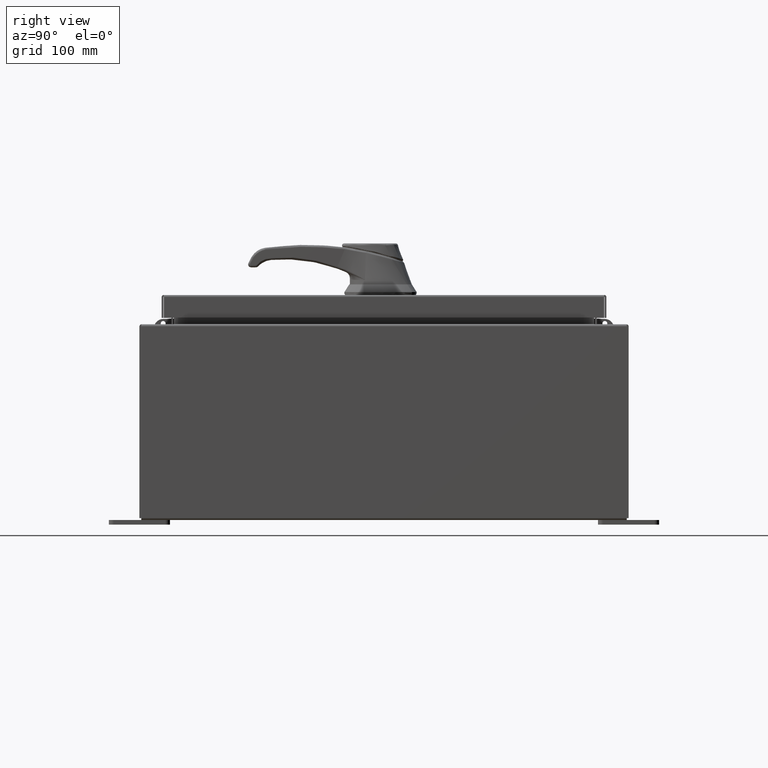
[diagram: clean part render]
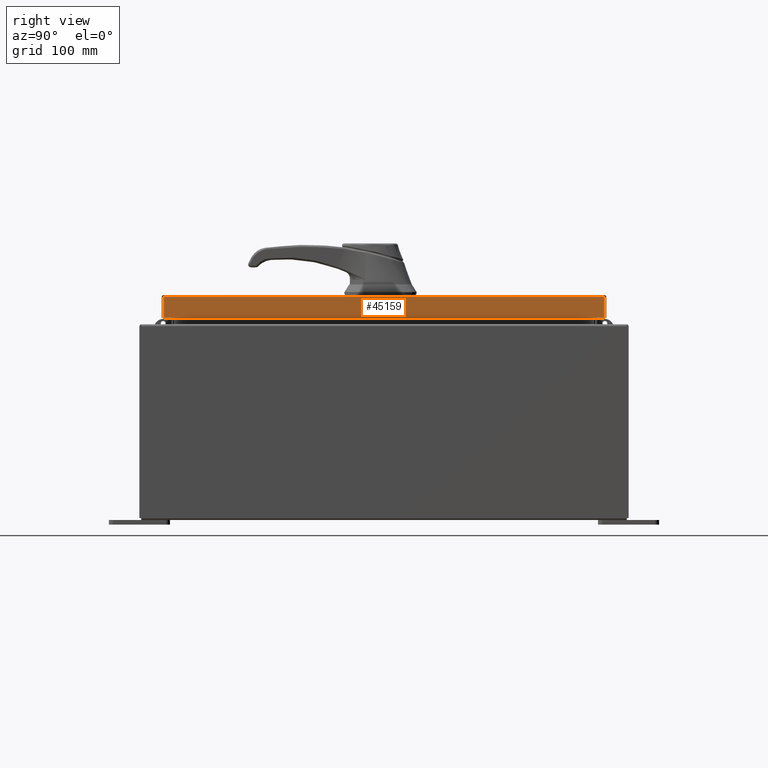
[diagram: same view with one face highlighted and labeled with its STEP entity id]
A machine part, right view. The second image highlights one B-rep face of the part: STEP entity #45159.
In plain terms, the highlighted planar face has unit normal (1, 0, 0).
Its self-contained STEP definition (entity closure, byte-faithful):
#4180 = ORIENTED_EDGE ( 'NONE', *, *, #8595, .F. ) ;
#4737 = EDGE_LOOP ( 'NONE', ( #4180, #41891, #25068, #60276 ) ) ;
#5338 = CARTESIAN_POINT ( 'NONE',  ( 7.078000000000002100, -9.005157864376267100, -0.08769999999999997200 ) ) ;
#5508 = CARTESIAN_POINT ( 'NONE',  ( 7.078000000000002100, 9.005157864376268900, 9.003019726912204800E-014 ) ) ;
#8595 = EDGE_CURVE ( 'NONE', #76421, #30381, #85282, .T. ) ;
#15862 = CARTESIAN_POINT ( 'NONE',  ( 7.078000000000005600, -9.093999999999999400, -0.9376999999999997600 ) ) ;
#16225 = CARTESIAN_POINT ( 'NONE',  ( 7.078000000000002100, 0.0000000000000000000, -0.08769999999999997200 ) ) ;
#24311 = DIRECTION ( 'NONE',  ( 0.0000000000000000000, -1.000000000000000000, 0.0000000000000000000 ) ) ;
#24657 = DIRECTION ( 'NONE',  ( 0.0000000000000000000, -1.000000000000000000, 0.0000000000000000000 ) ) ;
#25008 = VECTOR ( 'NONE', #24311, 39.37007874015748100 ) ;
#25068 = ORIENTED_EDGE ( 'NONE', *, *, #95055, .T. ) ;
#25361 = LINE ( 'NONE', #16225, #47743 ) ;
#28366 = DIRECTION ( 'NONE',  ( -3.798629886902798700E-015, -6.982962677686265900E-015, 1.000000000000000000 ) ) ;
#28988 = VECTOR ( 'NONE', #39398, 39.37007874015748100 ) ;
#30381 = VERTEX_POINT ( 'NONE', #5338 ) ;
#34500 = DIRECTION ( 'NONE',  ( 3.798629886902798700E-015, 0.0000000000000000000, -1.000000000000000000 ) ) ;
#39398 = DIRECTION ( 'NONE',  ( -3.798629886902798700E-015, -6.982962677686265900E-015, 1.000000000000000000 ) ) ;
#39930 = AXIS2_PLACEMENT_3D ( 'NONE', #51072, #85033, #34500 ) ;
#41891 = ORIENTED_EDGE ( 'NONE', *, *, #88853, .F. ) ;
#45159 = ADVANCED_FACE ( 'NONE', ( #99229 ), #76529, .T. ) ;
#47743 = VECTOR ( 'NONE', #24657, 39.37007874015748100 ) ;
#51072 = CARTESIAN_POINT ( 'NONE',  ( 7.078000000000002100, 0.0000000000000000000, 2.714751599550960100E-014 ) ) ;
#51803 = CARTESIAN_POINT ( 'NONE',  ( 7.078000000000002100, 9.005157864376270600, -0.08769999999999997200 ) ) ;
#60276 = ORIENTED_EDGE ( 'NONE', *, *, #77698, .T. ) ;
#67230 = LINE ( 'NONE', #15862, #25008 ) ;
#76421 = VERTEX_POINT ( 'NONE', #80636 ) ;
#76529 = PLANE ( 'NONE',  #39930 ) ;
#76805 = VERTEX_POINT ( 'NONE', #51803 ) ;
#77698 = EDGE_CURVE ( 'NONE', #76805, #30381, #25361, .T. ) ;
#78906 = CARTESIAN_POINT ( 'NONE',  ( 7.078000000000002100, -9.005157864376267100, -0.07469999999999972500 ) ) ;
#80528 = CARTESIAN_POINT ( 'NONE',  ( 7.078000000000005600, 9.005157864376276000, -0.9376999999999997600 ) ) ;
#80636 = CARTESIAN_POINT ( 'NONE',  ( 7.078000000000005600, -9.005157864376261800, -0.9376999999999997600 ) ) ;
#85033 = DIRECTION ( 'NONE',  ( 1.000000000000000000, 0.0000000000000000000, 3.798629886902798700E-015 ) ) ;
#85282 = LINE ( 'NONE', #78906, #107650 ) ;
#88853 = EDGE_CURVE ( 'NONE', #107339, #76421, #67230, .T. ) ;
#95055 = EDGE_CURVE ( 'NONE', #107339, #76805, #96235, .T. ) ;
#96235 = LINE ( 'NONE', #5508, #28988 ) ;
#99229 = FACE_OUTER_BOUND ( 'NONE', #4737, .T. ) ;
#107339 = VERTEX_POINT ( 'NONE', #80528 ) ;
#107650 = VECTOR ( 'NONE', #28366, 39.37007874015748100 ) ;